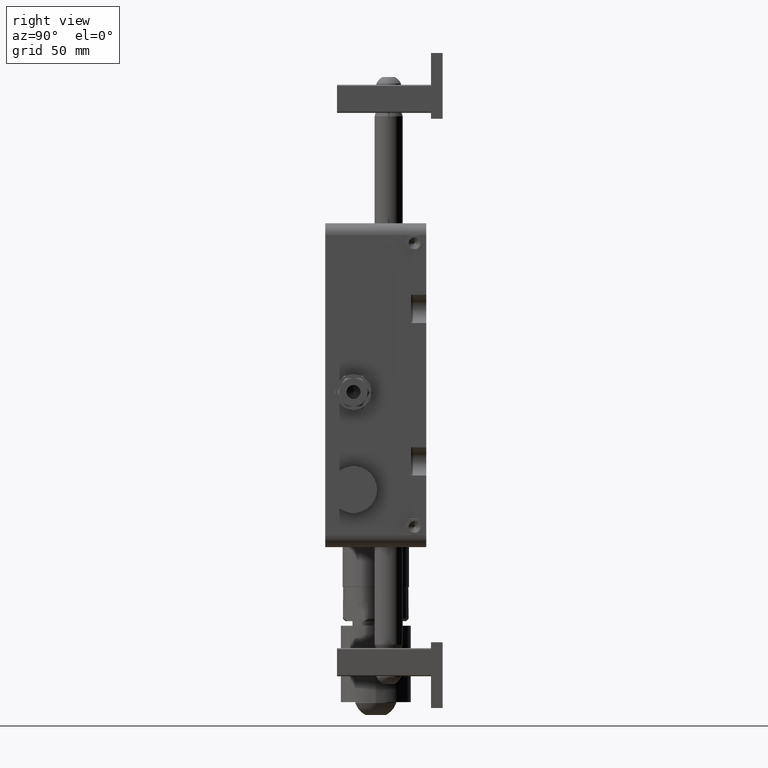
[diagram: clean part render]
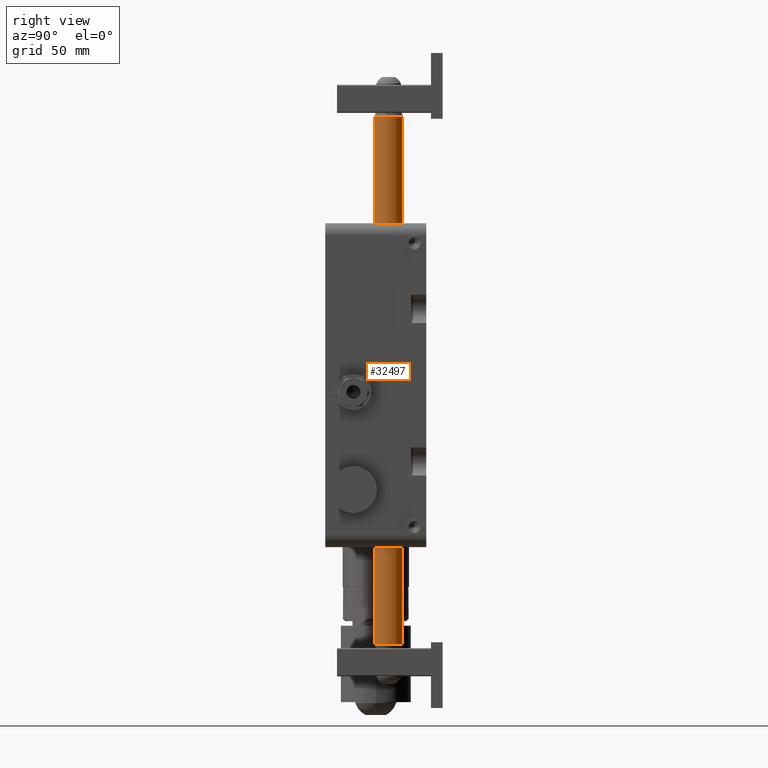
[diagram: same view with one face highlighted and labeled with its STEP entity id]
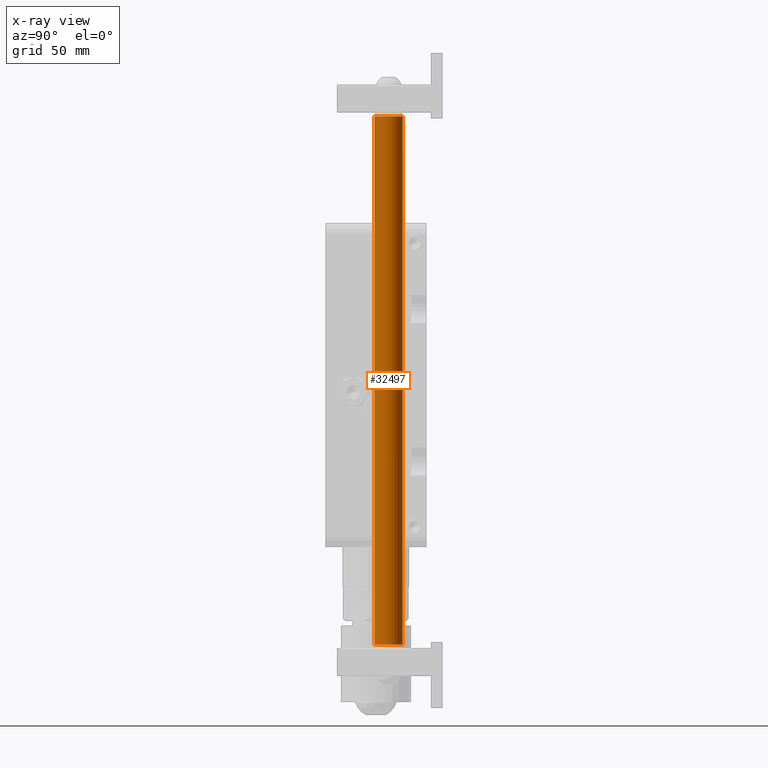
[diagram: x-ray of the same camera — body ghosted, the highlighted face saturated]
A machine part, right view. The second image highlights one B-rep face of the part: STEP entity #32497.
The next image is the same camera in x-ray: the body ghosted, the highlighted face saturated — about 0% of this face is hidden behind the body in this view.
In plain terms, the highlighted cylindrical surface (edge-blend (fillet) strip) has radius 6 mm, axis along (0, 0, 1).
Its self-contained STEP definition (entity closure, byte-faithful):
#1355 = VERTEX_POINT ( 'NONE', #3727 ) ;
#1838 = DIRECTION ( 'NONE',  ( 1.000000000000000000, 0.000000000000000000, 0.000000000000000000 ) ) ;
#3727 = CARTESIAN_POINT ( 'NONE',  ( 31.00000000000000000, 33.00000000000000000, -41.50000000000000000 ) ) ;
#4093 = ORIENTED_EDGE ( 'NONE', *, *, #11497, .F. ) ;
#4323 = CARTESIAN_POINT ( 'NONE',  ( 31.00000000000000000, 27.00000000000000000, 183.5000000000000000 ) ) ;
#4586 = VERTEX_POINT ( 'NONE', #52913 ) ;
#5325 = AXIS2_PLACEMENT_3D ( 'NONE', #8834, #26653, #25845 ) ;
#5856 = VERTEX_POINT ( 'NONE', #19924 ) ;
#6256 = AXIS2_PLACEMENT_3D ( 'NONE', #13911, #47441, #1838 ) ;
#7043 = CARTESIAN_POINT ( 'NONE',  ( 37.00000000000000000, 27.00000000000000000, 183.5000000000000000 ) ) ;
#7403 = LINE ( 'NONE', #28504, #19419 ) ;
#8834 = CARTESIAN_POINT ( 'NONE',  ( 31.00000000000000000, 27.00000000000000000, -41.50000000000000000 ) ) ;
#8846 = CIRCLE ( 'NONE', #5325, 5.999999999999998224 ) ;
#9577 = ORIENTED_EDGE ( 'NONE', *, *, #11658, .F. ) ;
#9898 = EDGE_CURVE ( 'NONE', #41592, #41665, #44663, .T. ) ;
#11497 = EDGE_CURVE ( 'NONE', #19908, #41665, #41264, .T. ) ;
#11658 = EDGE_CURVE ( 'NONE', #1355, #4586, #8846, .T. ) ;
#11956 = EDGE_CURVE ( 'NONE', #5856, #41592, #15035, .T. ) ;
#13119 = DIRECTION ( 'NONE',  ( 1.000000000000000000, 0.000000000000000000, 0.000000000000000000 ) ) ;
#13911 = CARTESIAN_POINT ( 'NONE',  ( 31.00000000000000000, 27.00000000000000000, 183.5000000000000000 ) ) ;
#14643 = EDGE_CURVE ( 'NONE', #1355, #5856, #7403, .T. ) ;
#15035 = CIRCLE ( 'NONE', #6256, 5.999999999999998224 ) ;
#16332 = AXIS2_PLACEMENT_3D ( 'NONE', #17245, #43062, #13119 ) ;
#17245 = CARTESIAN_POINT ( 'NONE',  ( 31.00000000000000000, 27.00000000000000000, -41.50000000000000000 ) ) ;
#19258 = DIRECTION ( 'NONE',  ( 6.264822606816029274E-17, 0.000000000000000000, 1.000000000000000000 ) ) ;
#19419 = VECTOR ( 'NONE', #40637, 1000.000000000000000 ) ;
#19908 = VERTEX_POINT ( 'NONE', #40876 ) ;
#19924 = CARTESIAN_POINT ( 'NONE',  ( 31.00000000000000000, 33.00000000000000000, 183.5000000000000000 ) ) ;
#20243 = DIRECTION ( 'NONE',  ( 0.000000000000000000, 7.867737962389780057E-17, -1.000000000000000000 ) ) ;
#25845 = DIRECTION ( 'NONE',  ( 1.000000000000000000, 0.000000000000000000, 0.000000000000000000 ) ) ;
#26653 = DIRECTION ( 'NONE',  ( 0.000000000000000000, 7.867737962389780057E-17, -1.000000000000000000 ) ) ;
#28504 = CARTESIAN_POINT ( 'NONE',  ( 31.00000000000000000, 33.00000000000000000, 71.00000000000000000 ) ) ;
#32133 = CYLINDRICAL_SURFACE ( 'NONE', #51838, 6.000000000000001776 ) ;
#32497 = ADVANCED_FACE ( 'NONE', ( #53298 ), #32133, .T. ) ;
#32591 = DIRECTION ( 'NONE',  ( 1.000000000000000000, 0.000000000000000000, 0.000000000000000000 ) ) ;
#34287 = ORIENTED_EDGE ( 'NONE', *, *, #46059, .F. ) ;
#36003 = DIRECTION ( 'NONE',  ( 0.000000000000000000, -1.000000000000000000, 0.000000000000000000 ) ) ;
#37784 = VECTOR ( 'NONE', #45669, 1000.000000000000000 ) ;
#40013 = CIRCLE ( 'NONE', #16332, 5.999999999999998224 ) ;
#40637 = DIRECTION ( 'NONE',  ( 6.264822606816029274E-17, -1.744706193277890069E-17, 1.000000000000000000 ) ) ;
#40876 = CARTESIAN_POINT ( 'NONE',  ( 31.00000000000000000, 21.00000000000000000, -41.50000000000000000 ) ) ;
#40929 = CARTESIAN_POINT ( 'NONE',  ( 31.00000000000000000, 27.00000000000000000, 71.00000000000000000 ) ) ;
#41264 = LINE ( 'NONE', #50061, #37784 ) ;
#41592 = VERTEX_POINT ( 'NONE', #7043 ) ;
#41665 = VERTEX_POINT ( 'NONE', #46038 ) ;
#43062 = DIRECTION ( 'NONE',  ( 0.000000000000000000, 7.867737962389780057E-17, -1.000000000000000000 ) ) ;
#43706 = ORIENTED_EDGE ( 'NONE', *, *, #9898, .T. ) ;
#43799 = AXIS2_PLACEMENT_3D ( 'NONE', #4323, #20243, #32591 ) ;
#44195 = ORIENTED_EDGE ( 'NONE', *, *, #14643, .T. ) ;
#44663 = CIRCLE ( 'NONE', #43799, 5.999999999999998224 ) ;
#45669 = DIRECTION ( 'NONE',  ( 6.264822606816029274E-17, -1.744706193277890069E-17, 1.000000000000000000 ) ) ;
#46038 = CARTESIAN_POINT ( 'NONE',  ( 31.00000000000000000, 21.00000000000000000, 183.5000000000000000 ) ) ;
#46059 = EDGE_CURVE ( 'NONE', #4586, #19908, #40013, .T. ) ;
#46128 = EDGE_LOOP ( 'NONE', ( #9577, #44195, #49136, #43706, #4093, #34287 ) ) ;
#47441 = DIRECTION ( 'NONE',  ( 0.000000000000000000, 7.867737962389780057E-17, -1.000000000000000000 ) ) ;
#49136 = ORIENTED_EDGE ( 'NONE', *, *, #11956, .T. ) ;
#50061 = CARTESIAN_POINT ( 'NONE',  ( 31.00000000000000000, 21.00000000000000000, 71.00000000000000000 ) ) ;
#51838 = AXIS2_PLACEMENT_3D ( 'NONE', #40929, #19258, #36003 ) ;
#52913 = CARTESIAN_POINT ( 'NONE',  ( 37.00000000000000000, 27.00000000000000000, -41.50000000000000000 ) ) ;
#53298 = FACE_OUTER_BOUND ( 'NONE', #46128, .T. ) ;